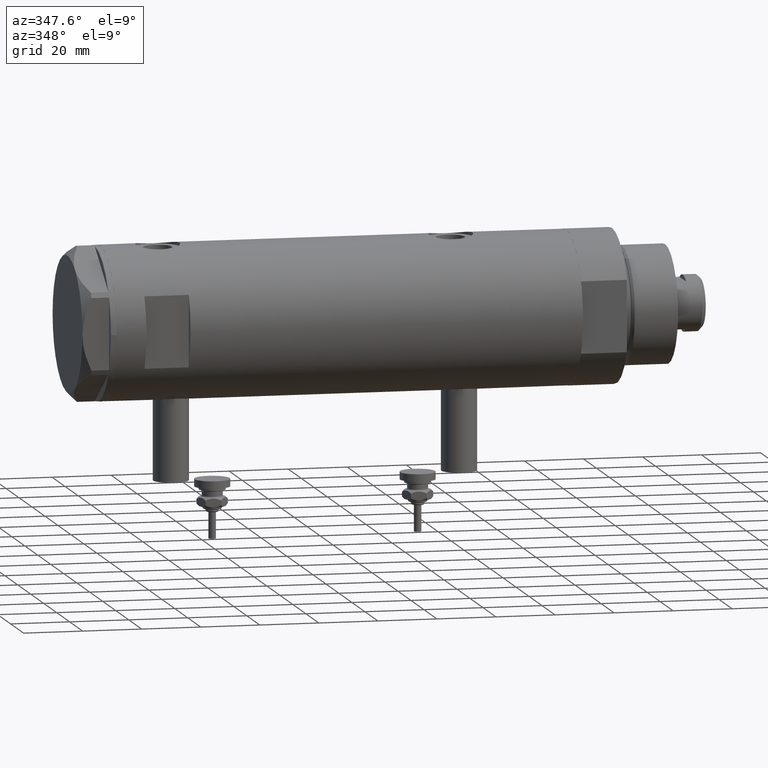
[diagram: clean part render]
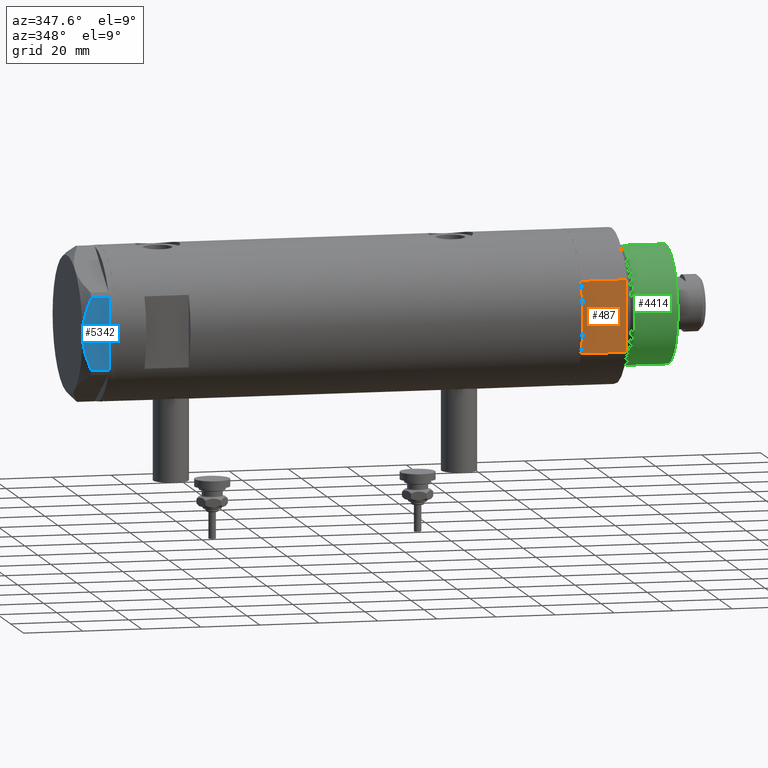
[diagram: same view with three faces highlighted in distinct colors, each labeled with its STEP entity id]
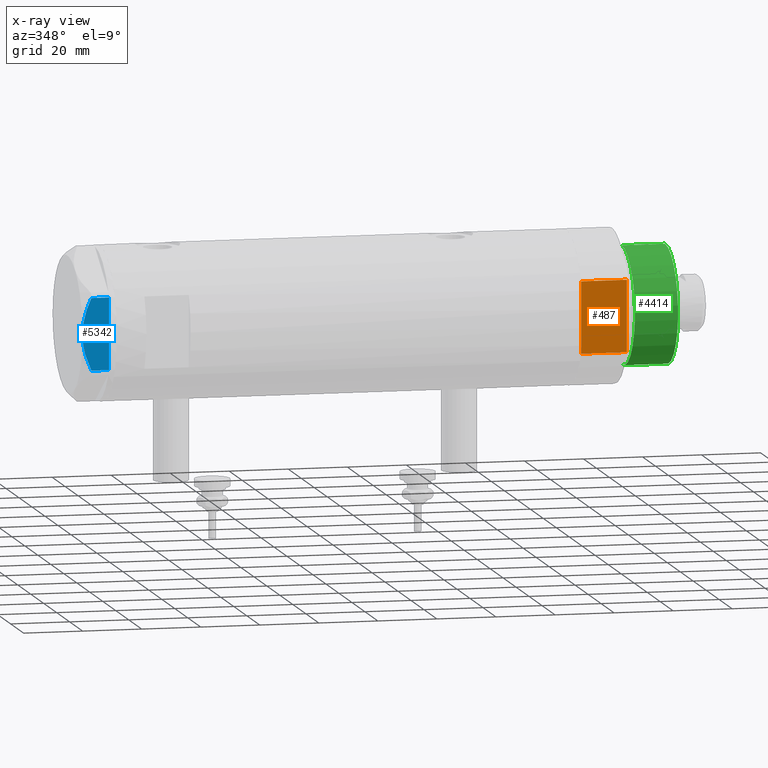
[diagram: x-ray of the same camera — body ghosted, the three highlighted faces saturated]
A machine part, auxiliary view with three faces highlighted in distinct colors.
The next image is the same camera in x-ray (body ghosted, the three faces saturated) — at least one of them is partly hidden behind the body in this view.
Their STEP definitions:

[orange] entity #487 — the highlighted planar face has unit normal (-0, 1, 0).
#23 = CARTESIAN_POINT ( 'NONE',  ( 12.12435565298215323, -22.99999999999999645, 0.000000000000000000 ) ) ;
#397 = AXIS2_PLACEMENT_3D ( 'NONE', #677, #1712, #2663 ) ;
#470 = ORIENTED_EDGE ( 'NONE', *, *, #1703, .F. ) ;
#487 = ADVANCED_FACE ( 'NONE', ( #5083 ), #1228, .F. ) ;
#615 = ORIENTED_EDGE ( 'NONE', *, *, #5985, .T. ) ;
#621 = LINE ( 'NONE', #3147, #2693 ) ;
#677 = CARTESIAN_POINT ( 'NONE',  ( -12.12435565298215145, -22.99999999999999645, 0.000000000000000000 ) ) ;
#752 = VERTEX_POINT ( 'NONE', #4756 ) ;
#861 = CARTESIAN_POINT ( 'NONE',  ( 12.12435565298215323, -22.99999999999999645, 15.50000000000000000 ) ) ;
#879 = CARTESIAN_POINT ( 'NONE',  ( -12.12435565298215145, -22.99999999999999645, 0.000000000000000000 ) ) ;
#939 = LINE ( 'NONE', #879, #5523 ) ;
#1161 = VECTOR ( 'NONE', #1508, 1000.000000000000000 ) ;
#1228 = PLANE ( 'NONE',  #397 ) ;
#1378 = VERTEX_POINT ( 'NONE', #23 ) ;
#1508 = DIRECTION ( 'NONE',  ( -0.000000000000000000, -0.000000000000000000, 1.000000000000000000 ) ) ;
#1513 = EDGE_LOOP ( 'NONE', ( #615, #2500, #470, #5524 ) ) ;
#1703 = EDGE_CURVE ( 'NONE', #1378, #6212, #939, .T. ) ;
#1712 = DIRECTION ( 'NONE',  ( -0.000000000000000000, 1.000000000000000000, 0.000000000000000000 ) ) ;
#1937 = EDGE_CURVE ( 'NONE', #1378, #2298, #621, .T. ) ;
#2298 = VERTEX_POINT ( 'NONE', #861 ) ;
#2312 = DIRECTION ( 'NONE',  ( -1.000000000000000000, -0.000000000000000000, -0.000000000000000000 ) ) ;
#2500 = ORIENTED_EDGE ( 'NONE', *, *, #5535, .F. ) ;
#2561 = CARTESIAN_POINT ( 'NONE',  ( -12.12435565298215145, -22.99999999999999645, 0.000000000000000000 ) ) ;
#2655 = VECTOR ( 'NONE', #4794, 1000.000000000000000 ) ;
#2663 = DIRECTION ( 'NONE',  ( 0.000000000000000000, -0.000000000000000000, 1.000000000000000000 ) ) ;
#2693 = VECTOR ( 'NONE', #5982, 1000.000000000000000 ) ;
#3147 = CARTESIAN_POINT ( 'NONE',  ( 12.12435565298215323, -22.99999999999999645, 0.000000000000000000 ) ) ;
#3339 = CARTESIAN_POINT ( 'NONE',  ( -12.12435565298215145, -22.99999999999999645, 15.50000000000000000 ) ) ;
#3680 = CARTESIAN_POINT ( 'NONE',  ( -12.12435565298215501, -22.99999999999999645, 0.000000000000000000 ) ) ;
#4439 = LINE ( 'NONE', #2561, #1161 ) ;
#4756 = CARTESIAN_POINT ( 'NONE',  ( -12.12435565298215323, -22.99999999999999645, 15.50000000000000000 ) ) ;
#4794 = DIRECTION ( 'NONE',  ( -1.000000000000000000, -0.000000000000000000, -0.000000000000000000 ) ) ;
#5083 = FACE_OUTER_BOUND ( 'NONE', #1513, .T. ) ;
#5271 = LINE ( 'NONE', #3339, #2655 ) ;
#5523 = VECTOR ( 'NONE', #2312, 1000.000000000000000 ) ;
#5524 = ORIENTED_EDGE ( 'NONE', *, *, #1937, .T. ) ;
#5535 = EDGE_CURVE ( 'NONE', #6212, #752, #4439, .T. ) ;
#5982 = DIRECTION ( 'NONE',  ( -0.000000000000000000, -0.000000000000000000, 1.000000000000000000 ) ) ;
#5985 = EDGE_CURVE ( 'NONE', #2298, #752, #5271, .T. ) ;
#6212 = VERTEX_POINT ( 'NONE', #3680 ) ;

[blue] entity #5342 — the highlighted planar face has unit normal (-0, 1, -0).
#197 = VECTOR ( 'NONE', #2449, 1000.000000000000000 ) ;
#218 = CARTESIAN_POINT ( 'NONE',  ( -22.99999999999999289, 12.15905619136133176, 5.983800287807616414 ) ) ;
#223 = ORIENTED_EDGE ( 'NONE', *, *, #5184, .T. ) ;
#354 = CARTESIAN_POINT ( 'NONE',  ( -22.99999999999996803, 7.239756182922199024, 7.892186063422847120 ) ) ;
#525 = EDGE_CURVE ( 'NONE', #1543, #3055, #2636, .T. ) ;
#642 = EDGE_CURVE ( 'NONE', #992, #1220, #4400, .T. ) ;
#726 = VERTEX_POINT ( 'NONE', #2330 ) ;
#805 = CARTESIAN_POINT ( 'NONE',  ( -22.99999999999993960, -2.119709279061923191, 8.908535212173198659 ) ) ;
#981 = EDGE_LOOP ( 'NONE', ( #3422, #6102, #3041, #223, #1435, #4833, #3991 ) ) ;
#992 = VERTEX_POINT ( 'NONE', #4041 ) ;
#1148 = VECTOR ( 'NONE', #3390, 1000.000000000000000 ) ;
#1154 = EDGE_CURVE ( 'NONE', #3055, #6237, #2837, .T. ) ;
#1220 = VERTEX_POINT ( 'NONE', #3382 ) ;
#1286 = CARTESIAN_POINT ( 'NONE',  ( -22.99999999999992184, -7.253003311474388148, 7.903276810347638737 ) ) ;
#1314 = LINE ( 'NONE', #3870, #1148 ) ;
#1353 = CARTESIAN_POINT ( 'NONE',  ( -22.99999999999991118, -10.22738952213794761, 6.832470313674783746 ) ) ;
#1380 = DIRECTION ( 'NONE',  ( 1.000000000000000000, 3.527173405730720141E-15, -0.000000000000000000 ) ) ;
#1435 = ORIENTED_EDGE ( 'NONE', *, *, #1551, .T. ) ;
#1543 = VERTEX_POINT ( 'NONE', #218 ) ;
#1551 = EDGE_CURVE ( 'NONE', #726, #2082, #4641, .T. ) ;
#1772 = CARTESIAN_POINT ( 'NONE',  ( -22.99999999999990763, -12.15905619136147564, 5.983800287807627072 ) ) ;
#1799 = CARTESIAN_POINT ( 'NONE',  ( -22.99999999999998579, 10.23890159976122050, 6.840812428290914404 ) ) ;
#2082 = VERTEX_POINT ( 'NONE', #5201 ) ;
#2122 = CARTESIAN_POINT ( 'NONE',  ( -22.99999999999999645, 13.27905619136132032, 0.000000000000000000 ) ) ;
#2330 = CARTESIAN_POINT ( 'NONE',  ( -22.99999999999990763, -12.12435565298232021, 0.000000000000000000 ) ) ;
#2449 = DIRECTION ( 'NONE',  ( 3.527173405730720141E-15, -1.000000000000000000, 0.000000000000000000 ) ) ;
#2606 = CARTESIAN_POINT ( 'NONE',  ( -22.99999999999999289, 12.15905619136133176, 9.000000000000000000 ) ) ;
#2636 = LINE ( 'NONE', #2606, #4000 ) ;
#2659 = LINE ( 'NONE', #4067, #5633 ) ;
#2703 = B_SPLINE_CURVE_WITH_KNOTS ( 'NONE', 3,
 ( #4624, #6165, #1799, #5107, #5142, #354, #4128, #5631, #6044, #3651 ),
 .UNSPECIFIED., .F., .F.,
 ( 4, 2, 2, 2, 4 ),
 ( 0.03516523594057416324, 0.03831677594541234300, 0.03989254594783143981, 0.04146831595025052969, 0.04777139595992690307 ),
 .UNSPECIFIED. ) ;
#2837 = LINE ( 'NONE', #6287, #197 ) ;
#3041 = ORIENTED_EDGE ( 'NONE', *, *, #1154, .T. ) ;
#3055 = VERTEX_POINT ( 'NONE', #3064 ) ;
#3064 = CARTESIAN_POINT ( 'NONE',  ( -22.99999999999999289, 12.15905619136133176, 0.000000000000000000 ) ) ;
#3144 = DIRECTION ( 'NONE',  ( 0.000000000000000000, 0.000000000000000000, -1.000000000000000000 ) ) ;
#3262 = CARTESIAN_POINT ( 'NONE',  ( -22.99999999999999645, 13.27905619136132032, 9.000000000000000000 ) ) ;
#3265 = CARTESIAN_POINT ( 'NONE',  ( -22.99999999999991829, -9.734726261263297431, 7.028924700095662281 ) ) ;
#3301 = CARTESIAN_POINT ( 'NONE',  ( -22.99999999999993250, -4.203926054641964782, 8.641681223122507305 ) ) ;
#3382 = CARTESIAN_POINT ( 'NONE',  ( -22.99999999999990763, -12.15905619136147564, 5.983800287807627072 ) ) ;
#3390 = DIRECTION ( 'NONE',  ( 0.000000000000000000, 0.000000000000000000, 1.000000000000000000 ) ) ;
#3422 = ORIENTED_EDGE ( 'NONE', *, *, #6179, .F. ) ;
#3651 = CARTESIAN_POINT ( 'NONE',  ( -23.00000000000004619, -8.112498833180673323E-14, 9.000000000000000000 ) ) ;
#3747 = CARTESIAN_POINT ( 'NONE',  ( -22.99999999999993960, -2.643615312305158671, 8.854304560636265364 ) ) ;
#3870 = CARTESIAN_POINT ( 'NONE',  ( -22.99999999999990763, -12.15905619136147386, 9.000000000000000000 ) ) ;
#3991 = ORIENTED_EDGE ( 'NONE', *, *, #642, .F. ) ;
#4000 = VECTOR ( 'NONE', #3144, 1000.000000000000000 ) ;
#4041 = CARTESIAN_POINT ( 'NONE',  ( -23.00000000000004619, -8.112498833180673323E-14, 9.000000000000000000 ) ) ;
#4067 = CARTESIAN_POINT ( 'NONE',  ( -22.99999999999999645, 13.27905619136132032, 0.000000000000000000 ) ) ;
#4128 = CARTESIAN_POINT ( 'NONE',  ( -22.99999999999997158, 6.734330413511419700, 8.039389741252668031 ) ) ;
#4162 = CARTESIAN_POINT ( 'NONE',  ( -23.00000000000004619, -8.112498833180673323E-14, 9.000000000000000000 ) ) ;
#4283 = CARTESIAN_POINT ( 'NONE',  ( -22.99999999999991829, -8.252113629125268801, 7.581642062680223226 ) ) ;
#4324 = CARTESIAN_POINT ( 'NONE',  ( -22.99999999999995026, -1.063773509315737442, 8.981438083606830602 ) ) ;
#4400 = B_SPLINE_CURVE_WITH_KNOTS ( 'NONE', 3,
 ( #4162, #5603, #4324, #805, #3747, #3301, #5693, #1286, #4283, #3265, #1353, #5233, #6242, #1772 ),
 .UNSPECIFIED., .F., .F.,
 ( 4, 2, 2, 2, 2, 2, 4 ),
 ( 0.04777139595992690307, 0.04934380568070229761, 0.05091621540147769215, 0.05406103484302848122, 0.05720585428457927030, 0.05877826400535466483, 0.06035067372613005937 ),
 .UNSPECIFIED. ) ;
#4624 = CARTESIAN_POINT ( 'NONE',  ( -22.99999999999999289, 12.15905619136133176, 5.983800287807616414 ) ) ;
#4641 = LINE ( 'NONE', #2122, #5122 ) ;
#4787 = DIRECTION ( 'NONE',  ( -3.527173405730720141E-15, 1.000000000000000000, 0.000000000000000000 ) ) ;
#4833 = ORIENTED_EDGE ( 'NONE', *, *, #5343, .T. ) ;
#5107 = CARTESIAN_POINT ( 'NONE',  ( -22.99999999999997513, 8.748091966971378142, 7.396818978284571244 ) ) ;
#5122 = VECTOR ( 'NONE', #6059, 1000.000000000000000 ) ;
#5142 = CARTESIAN_POINT ( 'NONE',  ( -22.99999999999998224, 8.246028007352361300, 7.571131808646907935 ) ) ;
#5184 = EDGE_CURVE ( 'NONE', #6237, #726, #2659, .T. ) ;
#5201 = CARTESIAN_POINT ( 'NONE',  ( -22.99999999999990763, -12.15905619136147386, 0.000000000000000000 ) ) ;
#5232 = FACE_OUTER_BOUND ( 'NONE', #981, .T. ) ;
#5233 = CARTESIAN_POINT ( 'NONE',  ( -22.99999999999991118, -11.20155944044816287, 6.421102682632757741 ) ) ;
#5342 = ADVANCED_FACE ( 'NONE', ( #5232 ), #5692, .F. ) ;
#5343 = EDGE_CURVE ( 'NONE', #2082, #1220, #1314, .T. ) ;
#5474 = CARTESIAN_POINT ( 'NONE',  ( -22.99999999999999289, 12.12435565298215856, 0.000000000000000000 ) ) ;
#5603 = CARTESIAN_POINT ( 'NONE',  ( -22.99999999999995737, -0.5295934231897764244, 9.000000000000092371 ) ) ;
#5631 = CARTESIAN_POINT ( 'NONE',  ( -22.99999999999996803, 4.194757081058972936, 8.703000351525203016 ) ) ;
#5633 = VECTOR ( 'NONE', #6076, 1000.000000000000000 ) ;
#5692 = PLANE ( 'NONE',  #6246 ) ;
#5693 = CARTESIAN_POINT ( 'NONE',  ( -22.99999999999992895, -5.228918809624124364, 8.433337033849854336 ) ) ;
#6044 = CARTESIAN_POINT ( 'NONE',  ( -22.99999999999995381, 2.122900714018063795, 9.000000000000092371 ) ) ;
#6059 = DIRECTION ( 'NONE',  ( 3.527173405730720141E-15, -1.000000000000000000, 0.000000000000000000 ) ) ;
#6076 = DIRECTION ( 'NONE',  ( 3.527173405730720141E-15, -1.000000000000000000, 0.000000000000000000 ) ) ;
#6102 = ORIENTED_EDGE ( 'NONE', *, *, #525, .T. ) ;
#6165 = CARTESIAN_POINT ( 'NONE',  ( -22.99999999999998934, 11.20825071633916359, 6.428173306378450746 ) ) ;
#6179 = EDGE_CURVE ( 'NONE', #1543, #992, #2703, .T. ) ;
#6237 = VERTEX_POINT ( 'NONE', #5474 ) ;
#6242 = CARTESIAN_POINT ( 'NONE',  ( -22.99999999999990763, -11.68282849742335827, 6.206372352695425754 ) ) ;
#6246 = AXIS2_PLACEMENT_3D ( 'NONE', #3262, #1380, #4787 ) ;
#6287 = CARTESIAN_POINT ( 'NONE',  ( -22.99999999999999645, 13.27905619136132032, 0.000000000000000000 ) ) ;

[green] entity #4414 — the highlighted cylindrical surface (partial cylindrical patch) has radius 20 mm, axis along (-1, -0, 0).
#252 = ORIENTED_EDGE ( 'NONE', *, *, #2585, .F. ) ;
#623 = VERTEX_POINT ( 'NONE', #5112 ) ;
#797 = EDGE_CURVE ( 'NONE', #2840, #623, #2877, .T. ) ;
#849 = CARTESIAN_POINT ( 'NONE',  ( 19.99999999999999645, 2.449293598294706119E-15, 18.87384048104053846 ) ) ;
#962 = DIRECTION ( 'NONE',  ( -0.000000000000000000, -0.000000000000000000, -1.000000000000000000 ) ) ;
#1152 = CARTESIAN_POINT ( 'NONE',  ( 0.000000000000000000, 0.000000000000000000, 33.50000000000000000 ) ) ;
#1409 = CARTESIAN_POINT ( 'NONE',  ( 19.99999999999999645, 2.449293598294706119E-15, 33.50000000000000000 ) ) ;
#1557 = VECTOR ( 'NONE', #4758, 1000.000000000000000 ) ;
#1815 = CARTESIAN_POINT ( 'NONE',  ( 0.000000000000000000, 0.000000000000000000, 33.50000000000000000 ) ) ;
#1958 = AXIS2_PLACEMENT_3D ( 'NONE', #2995, #4488, #5373 ) ;
#2072 = EDGE_CURVE ( 'NONE', #2314, #3324, #6170, .T. ) ;
#2098 = DIRECTION ( 'NONE',  ( 0.000000000000000000, 0.000000000000000000, 1.000000000000000000 ) ) ;
#2194 = ORIENTED_EDGE ( 'NONE', *, *, #3063, .T. ) ;
#2314 = VERTEX_POINT ( 'NONE', #1409 ) ;
#2518 = ORIENTED_EDGE ( 'NONE', *, *, #797, .T. ) ;
#2585 = EDGE_CURVE ( 'NONE', #2840, #2314, #5319, .T. ) ;
#2840 = VERTEX_POINT ( 'NONE', #5312 ) ;
#2877 = LINE ( 'NONE', #3456, #6112 ) ;
#2995 = CARTESIAN_POINT ( 'NONE',  ( 0.000000000000000000, 0.000000000000000000, 18.87384048104053846 ) ) ;
#3063 = EDGE_CURVE ( 'NONE', #623, #3324, #4822, .T. ) ;
#3312 = DIRECTION ( 'NONE',  ( -1.000000000000000000, 0.000000000000000000, 0.000000000000000000 ) ) ;
#3324 = VERTEX_POINT ( 'NONE', #849 ) ;
#3456 = CARTESIAN_POINT ( 'NONE',  ( -19.99999999999999645, 0.000000000000000000, 33.50000000000000000 ) ) ;
#4009 = AXIS2_PLACEMENT_3D ( 'NONE', #1152, #2098, #4469 ) ;
#4414 = ADVANCED_FACE ( 'NONE', ( #6218 ), #4772, .T. ) ;
#4427 = AXIS2_PLACEMENT_3D ( 'NONE', #1815, #5803, #3312 ) ;
#4469 = DIRECTION ( 'NONE',  ( 1.000000000000000000, 0.000000000000000000, 0.000000000000000000 ) ) ;
#4488 = DIRECTION ( 'NONE',  ( -0.000000000000000000, -0.000000000000000000, 1.000000000000000000 ) ) ;
#4758 = DIRECTION ( 'NONE',  ( -0.000000000000000000, -0.000000000000000000, -1.000000000000000000 ) ) ;
#4772 = CYLINDRICAL_SURFACE ( 'NONE', #4427, 19.99999999999999645 ) ;
#4807 = EDGE_LOOP ( 'NONE', ( #6087, #252, #2518, #2194 ) ) ;
#4822 = CIRCLE ( 'NONE', #1958, 19.99999999999999645 ) ;
#5112 = CARTESIAN_POINT ( 'NONE',  ( -19.99999999999999645, 0.000000000000000000, 18.87384048104053846 ) ) ;
#5312 = CARTESIAN_POINT ( 'NONE',  ( -19.99999999999999645, 0.000000000000000000, 33.50000000000000000 ) ) ;
#5319 = CIRCLE ( 'NONE', #4009, 19.99999999999999645 ) ;
#5373 = DIRECTION ( 'NONE',  ( 1.000000000000000000, 0.000000000000000000, 0.000000000000000000 ) ) ;
#5803 = DIRECTION ( 'NONE',  ( -0.000000000000000000, -0.000000000000000000, -1.000000000000000000 ) ) ;
#6087 = ORIENTED_EDGE ( 'NONE', *, *, #2072, .F. ) ;
#6112 = VECTOR ( 'NONE', #962, 1000.000000000000000 ) ;
#6170 = LINE ( 'NONE', #6244, #1557 ) ;
#6218 = FACE_OUTER_BOUND ( 'NONE', #4807, .T. ) ;
#6244 = CARTESIAN_POINT ( 'NONE',  ( 19.99999999999999645, 2.449293598294706119E-15, 33.50000000000000000 ) ) ;